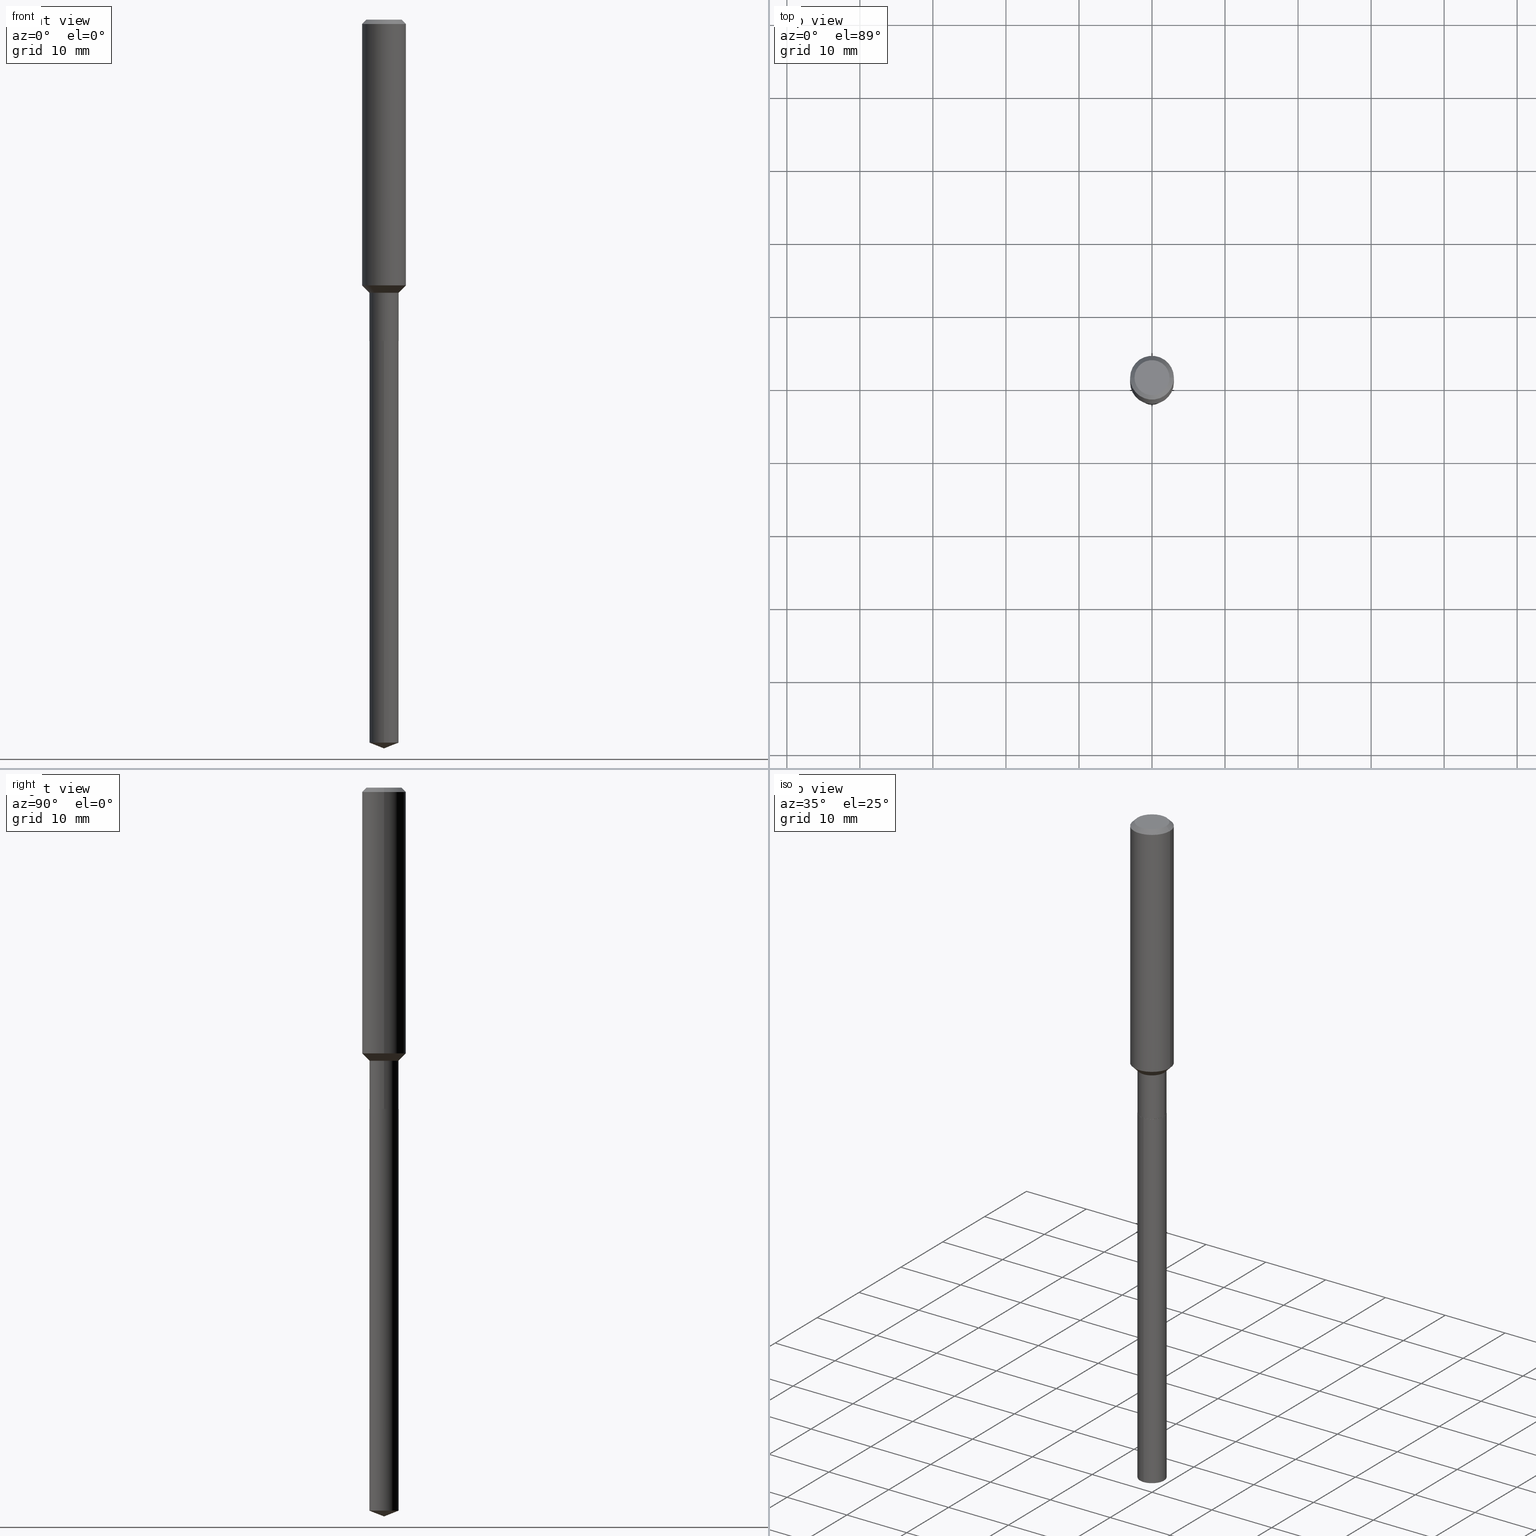
[diagram: canonical four-view strip — front | top / right | iso, engineering-drawing reading convention]
A machine part, canonical four-view strip (front | top / right | iso — engineering-drawing reading convention). The complete STEP part file that produces these views, byte-faithful:
ISO-10303-21;
HEADER;
FILE_DESCRIPTION (( 'STEP AP203' ),
    '1' );
FILE_NAME ('66719.STEP',
    '2024-04-25T04:27:47',
    ( '' ),
    ( '' ),
    'SwSTEP 2.0',
    'SolidWorks 2023',
    '' );
FILE_SCHEMA (( 'CONFIG_CONTROL_DESIGN' ));
ENDSEC;

DATA;
#1 = ORIENTED_EDGE ( 'NONE', *, *, #463, .F. ) ;
#2 = CARTESIAN_POINT ( 'NONE',  ( 4.234818331670801367E-29, -6.046198234474675274E-15, -1.731700000000000017 ) ) ;
#3 = EDGE_CURVE ( 'NONE', #52, #313, #203, .T. ) ;
#4 = ORIENTED_EDGE ( 'NONE', *, *, #3, .F. ) ;
#5 = LOCAL_TIME ( 0, 27, 47.00000000000000000, #368 ) ;
#6 = EDGE_CURVE ( 'NONE', #18, #170, #411, .T. ) ;
#7 = CARTESIAN_POINT ( 'NONE',  ( 0.07825000000000000011, -6.594360804673047116E-15, -1.732199999999999962 ) ) ;
#8 = CC_DESIGN_PERSON_AND_ORGANIZATION_ASSIGNMENT ( #445, #249, ( #283 ) ) ;
#9 = ORIENTED_EDGE ( 'NONE', *, *, #250, .T. ) ;
#10 = VERTEX_POINT ( 'NONE', #443 ) ;
#11 = SHAPE_DEFINITION_REPRESENTATION ( #251, #188 ) ;
#12 = ADVANCED_FACE ( 'NONE', ( #147 ), #173, .T. ) ;
#13 = ORIENTED_EDGE ( 'NONE', *, *, #105, .F. ) ;
#14 = APPROVAL_STATUS ( 'not_yet_approved' ) ;
#15 = AXIS2_PLACEMENT_3D ( 'NONE', #83, #186, #20 ) ;
#16 = AXIS2_PLACEMENT_3D ( 'NONE', #2, #129, #338 ) ;
#17 = DIRECTION ( 'NONE',  ( 1.000000000000000000, -6.982962677686265922E-15, 0.000000000000000000 ) ) ;
#18 = VERTEX_POINT ( 'NONE', #194 ) ;
#19 = CARTESIAN_POINT ( 'NONE',  ( -0.07874999999999995892, -5.033975274482582847E-15, -1.472400000000000153 ) ) ;
#20 = DIRECTION ( 'NONE',  ( -6.982962677686265922E-15, -1.000000000000000000, 3.498627837350102041E-15 ) ) ;
#21 = CALENDAR_DATE ( 2024, 25, 4 ) ;
#22 = CARTESIAN_POINT ( 'NONE',  ( 4.716267017698007905E-46, -6.733579360998555036E-32, -1.928573779297252010E-17 ) ) ;
#23 = EDGE_CURVE ( 'NONE', #260, #319, #287, .T. ) ;
#24 = VECTOR ( 'NONE', #190, 39.37007874015748143 ) ;
#25 = AXIS2_PLACEMENT_3D ( 'NONE', #475, #143, #436 ) ;
#26 = CARTESIAN_POINT ( 'NONE',  ( 4.236041066073893047E-29, -6.047943975144096777E-15, -1.732199999999999962 ) ) ;
#27 = ADVANCED_FACE ( 'NONE', ( #117 ), #417, .T. ) ;
#28 = DIRECTION ( 'NONE',  ( -6.982962677686264344E-15, -1.000000000000000000, 6.938026650575906587E-15 ) ) ;
#29 = CARTESIAN_POINT ( 'NONE',  ( -8.666863616417803331E-28, 1.237438933470214878E-13, 35.44107874015747939 ) ) ;
#30 = DATE_TIME_ROLE ( 'creation_date' ) ;
#31 = LINE ( 'NONE', #76, #198 ) ;
#32 = CONICAL_SURFACE ( 'NONE', #145, 0.07874999999999995892, 0.7853981633974516097 ) ;
#33 = DIRECTION ( 'NONE',  ( -1.000000000000000000, 6.982962677686265922E-15, -4.876176775795935793E-29 ) ) ;
#34 = AXIS2_PLACEMENT_3D ( 'NONE', #471, #54, #209 ) ;
#35 = LOCAL_TIME ( 0, 27, 47.00000000000000000, #142 ) ;
#36 = DIRECTION ( 'NONE',  ( -6.982962677686264344E-15, -1.000000000000000000, 3.469013325287953293E-15 ) ) ;
#37 = LINE ( 'NONE', #40, #100 ) ;
#38 = EDGE_LOOP ( 'NONE', ( #456, #175, #310, #376 ) ) ;
#39 = DIRECTION ( 'NONE',  ( -2.445430704826410489E-29, 3.491535902157436245E-15, 1.000000000000000000 ) ) ;
#40 = CARTESIAN_POINT ( 'NONE',  ( -0.07825000000000000011, -5.491944284411818085E-15, -1.732199999999999962 ) ) ;
#41 = AXIS2_PLACEMENT_3D ( 'NONE', #124, #271, #17 ) ;
#42 = MANIFOLD_SOLID_BREP ( 'Body-Move/Copy2[2]', #197 ) ;
#43 = DIRECTION ( 'NONE',  ( -1.000000000000000000, 6.982962677686266711E-15, 0.000000000000000000 ) ) ;
#44 = EDGE_CURVE ( 'NONE', #430, #459, #149, .T. ) ;
#45 = CARTESIAN_POINT ( 'NONE',  ( 4.716267017698007905E-46, -6.733579360998555036E-32, -1.928573779297252010E-17 ) ) ;
#46 = CARTESIAN_POINT ( 'NONE',  ( -5.499083108676978935E-16, -0.07875000000001357303, -3.897979550045322483 ) ) ;
#47 = APPROVAL ( #434, 'UNSPECIFIED' ) ;
#48 = VECTOR ( 'NONE', #359, 39.37007874015748854 ) ;
#49 = ORIENTED_EDGE ( 'NONE', *, *, #44, .F. ) ;
#50 = AXIS2_PLACEMENT_3D ( 'NONE', #225, #398, #74 ) ;
#51 = APPROVAL_PERSON_ORGANIZATION ( #183, #47, #400 ) ;
#52 = VERTEX_POINT ( 'NONE', #229 ) ;
#53 = APPROVAL_ROLE ( '' ) ;
#54 = DIRECTION ( 'NONE',  ( 0.000000000000000000, 0.000000000000000000, 1.000000000000000000 ) ) ;
#55 = EDGE_CURVE ( 'NONE', #128, #56, #140, .T. ) ;
#56 = VERTEX_POINT ( 'NONE', #259 ) ;
#57 = APPROVAL ( #481, 'UNSPECIFIED' ) ;
#58 =( NAMED_UNIT ( * ) SI_UNIT ( $, .STERADIAN. ) SOLID_ANGLE_UNIT ( ) );
#59 = ORIENTED_EDGE ( 'NONE', *, *, #234, .T. ) ;
#60 = FACE_OUTER_BOUND ( 'NONE', #243, .T. ) ;
#61 = ADVANCED_FACE ( 'NONE', ( #228 ), #32, .T. ) ;
#62 = DESIGN_CONTEXT ( 'detailed design', #451, 'design' ) ;
#63 = CALENDAR_DATE ( 2024, 25, 4 ) ;
#64 = VECTOR ( 'NONE', #154, 39.37007874015748854 ) ;
#65 = CIRCLE ( 'NONE', #50, 0.1181000000000001632 ) ;
#66 = CARTESIAN_POINT ( 'NONE',  ( 0.1181000000000001632, -5.828155224863919617E-15, -1.433050000000000157 ) ) ;
#67 = CIRCLE ( 'NONE', #478, 0.1180999999999999966 ) ;
#68 = CC_DESIGN_APPROVAL ( #276, ( #438 ) ) ;
#69 = CYLINDRICAL_SURFACE ( 'NONE', #238, 0.07874999999999997280 ) ;
#70 = EDGE_CURVE ( 'NONE', #355, #371, #237, .T. ) ;
#71 = DIRECTION ( 'NONE',  ( 1.000000000000000000, -6.982962677686266711E-15, 4.876176775795936353E-29 ) ) ;
#72 = DATE_AND_TIME ( #441, #127 ) ;
#73 = CARTESIAN_POINT ( 'NONE',  ( 5.776197320209328408E-31, -8.246878922347560526E-17, -0.02362000000000014435 ) ) ;
#74 = DIRECTION ( 'NONE',  ( 1.000000000000000000, -6.982962677686270655E-15, 0.000000000000000000 ) ) ;
#75 = APPLICATION_PROTOCOL_DEFINITION ( 'international standard', 'config_control_design', 1994, #451 ) ;
#76 = CARTESIAN_POINT ( 'NONE',  ( 9.608097239262967129E-29, -1.371824455957656728E-14, -3.929000000000000270 ) ) ;
#77 = PERSON ( 'UNSPECIFIED', 'UNSPECIFIED', 'UNSPECIFIED', ('UNSPECIFIED'), ('UNSPECIFIED'), ('UNSPECIFIED') ) ;
#78 = DIRECTION ( 'NONE',  ( -2.445468806185136597E-29, 3.491481338843145583E-15, 1.000000000000000000 ) ) ;
#79 = AXIS2_PLACEMENT_3D ( 'NONE', #377, #185, #28 ) ;
#80 = CC_DESIGN_APPROVAL ( #47, ( #248 ) ) ;
#81 = DIMENSIONAL_EXPONENTS ( 1.000000000000000000, 0.000000000000000000, 0.000000000000000000, 0.000000000000000000, 0.000000000000000000, 0.000000000000000000, 0.000000000000000000 ) ;
#82 = DIRECTION ( 'NONE',  ( 6.611014441532042923E-15, 0.9304175679820235745, 0.3665012267242994115 ) ) ;
#83 = CARTESIAN_POINT ( 'NONE',  ( -8.666863616417803331E-28, 1.237438933470214878E-13, 35.44107874015747939 ) ) ;
#84 = LINE ( 'NONE', #156, #362 ) ;
#85 = EDGE_LOOP ( 'NONE', ( #239, #444 ) ) ;
#86 = CARTESIAN_POINT ( 'NONE',  ( 4.236041066073893047E-29, -6.047943975144096777E-15, -1.732199999999999962 ) ) ;
#87 = CIRCLE ( 'NONE', #354, 0.09447999999999998066 ) ;
#88 = ORIENTED_EDGE ( 'NONE', *, *, #101, .F. ) ;
#89 = ADVANCED_FACE ( 'NONE', ( #179 ), #331, .F. ) ;
#90 = CARTESIAN_POINT ( 'NONE',  ( -0.1181000000000001632, -4.164316361696490002E-15, -1.433050000000000157 ) ) ;
#91 = DIRECTION ( 'NONE',  ( -2.445468806185136597E-29, 3.491481338843145583E-15, 1.000000000000000000 ) ) ;
#92 = EDGE_LOOP ( 'NONE', ( #9, #420, #123, #49 ) ) ;
#93 = EDGE_CURVE ( 'NONE', #10, #490, #37, .T. ) ;
#94 = AXIS2_PLACEMENT_3D ( 'NONE', #299, #303, #33 ) ;
#95 = ORIENTED_EDGE ( 'NONE', *, *, #279, .T. ) ;
#96 = DIRECTION ( 'NONE',  ( 1.000000000000000000, -6.982962677686267499E-15, 4.875432709231658792E-29 ) ) ;
#97 = ORIENTED_EDGE ( 'NONE', *, *, #466, .F. ) ;
#98 = PERSON_AND_ORGANIZATION_ROLE ( 'classification_officer' ) ;
#99 = DIRECTION ( 'NONE',  ( 1.000000000000000000, -6.982962677686261977E-15, 0.000000000000000000 ) ) ;
#100 = VECTOR ( 'NONE', #323, 39.37007874015748143 ) ;
#101 = EDGE_CURVE ( 'NONE', #207, #371, #339, .T. ) ;
#102 = CONICAL_SURFACE ( 'NONE', #174, 0.07825000000000000011, 0.7853981633975507526 ) ;
#103 = ADVANCED_FACE ( 'NONE', ( #470 ), #388, .T. ) ;
#104 = CARTESIAN_POINT ( 'NONE',  ( -0.1180999999999999966, 7.422191030112725094E-16, -0.02362000000000014435 ) ) ;
#105 = EDGE_CURVE ( 'NONE', #56, #355, #255, .T. ) ;
#106 = DIRECTION ( 'NONE',  ( 1.000000000000000000, -6.982962677686267499E-15, 0.000000000000000000 ) ) ;
#107 = CLOSED_SHELL ( 'NONE', ( #252, #103, #12, #457, #363 ) ) ;
#108 = AXIS2_PLACEMENT_3D ( 'NONE', #455, #383, #43 ) ;
#109 = CARTESIAN_POINT ( 'NONE',  ( 3.600708270226995482E-29, -5.140857123312647235E-15, -1.472400000000000153 ) ) ;
#110 = LOCAL_TIME ( 0, 27, 47.00000000000000000, #244 ) ;
#111 = DIRECTION ( 'NONE',  ( 1.000000000000000000, -6.982962677686270655E-15, 0.000000000000000000 ) ) ;
#112 = CC_DESIGN_DATE_AND_TIME_ASSIGNMENT ( #72, #30, ( #283 ) ) ;
#113 = COORDINATED_UNIVERSAL_TIME_OFFSET ( 5, 0, .BEHIND. ) ;
#114 = FACE_OUTER_BOUND ( 'NONE', #92, .T. ) ;
#115 = DIRECTION ( 'NONE',  ( -2.438088387897960049E-29, 3.491481338843145188E-15, 1.000000000000000000 ) ) ;
#116 = CARTESIAN_POINT ( 'NONE',  ( 4.236041066073893047E-29, -6.047943975144096777E-15, -1.732199999999999962 ) ) ;
#117 = FACE_OUTER_BOUND ( 'NONE', #38, .T. ) ;
#118 = CARTESIAN_POINT ( 'NONE',  ( 4.234818331670801367E-29, -6.046198234474675274E-15, -1.731700000000000017 ) ) ;
#119 = ORIENTED_EDGE ( 'NONE', *, *, #410, .T. ) ;
#120 = CARTESIAN_POINT ( 'NONE',  ( -0.1181000000000000799, 8.391509709326788873E-16, -5.809262341591047988E-30 ) ) ;
#121 = CARTESIAN_POINT ( 'NONE',  ( 3.600708270226995482E-29, -5.140857123312647235E-15, -1.472400000000000153 ) ) ;
#122 = ADVANCED_FACE ( 'NONE', ( #480 ), #157, .F. ) ;
#123 = ORIENTED_EDGE ( 'NONE', *, *, #473, .F. ) ;
#124 = CARTESIAN_POINT ( 'NONE',  ( 3.600708270226995482E-29, -5.140857123312647235E-15, -1.472400000000000153 ) ) ;
#125 = VECTOR ( 'NONE', #370, 39.37007874015748143 ) ;
#126 = CONICAL_SURFACE ( 'NONE', #108, 0.1180999999999999966, 0.7853981633974459475 ) ;
#127 = LOCAL_TIME ( 0, 27, 47.00000000000000000, #113 ) ;
#128 = VERTEX_POINT ( 'NONE', #405 ) ;
#129 = DIRECTION ( 'NONE',  ( -2.445468806185136597E-29, 3.491481338843145583E-15, 1.000000000000000000 ) ) ;
#130 = EDGE_LOOP ( 'NONE', ( #464, #282, #428, #97 ) ) ;
#131 = CYLINDRICAL_SURFACE ( 'NONE', #221, 0.07875000000000000056 ) ;
#132 = ORIENTED_EDGE ( 'NONE', *, *, #346, .T. ) ;
#133 = DATE_TIME_ROLE ( 'classification_date' ) ;
#134 = EDGE_CURVE ( 'NONE', #490, #128, #325, .T. ) ;
#135 = AXIS2_PLACEMENT_3D ( 'NONE', #116, #366, #106 ) ;
#136 = DIRECTION ( 'NONE',  ( -2.445468806185136597E-29, 3.491481338843145583E-15, 1.000000000000000000 ) ) ;
#137 = COORDINATED_UNIVERSAL_TIME_OFFSET ( 5, 0, .BEHIND. ) ;
#138 = ORIENTED_EDGE ( 'NONE', *, *, #55, .T. ) ;
#139 = ORIENTED_EDGE ( 'NONE', *, *, #485, .T. ) ;
#140 = LINE ( 'NONE', #447, #395 ) ;
#141 = CIRCLE ( 'NONE', #292, 0.07874999999999995892 ) ;
#142 = COORDINATED_UNIVERSAL_TIME_OFFSET ( 5, 0, .BEHIND. ) ;
#143 = DIRECTION ( 'NONE',  ( -2.445468806185136597E-29, 3.491481338843145583E-15, 1.000000000000000000 ) ) ;
#144 = CALENDAR_DATE ( 2024, 25, 4 ) ;
#145 = AXIS2_PLACEMENT_3D ( 'NONE', #409, #78, #483 ) ;
#146 = DIRECTION ( 'NONE',  ( -6.982962677686264344E-15, -1.000000000000000000, 6.938026650575906587E-15 ) ) ;
#147 = FACE_OUTER_BOUND ( 'NONE', #192, .T. ) ;
#148 = CARTESIAN_POINT ( 'NONE',  ( 4.236041066073893047E-29, -6.047943975144096777E-15, -1.732199999999999962 ) ) ;
#149 = LINE ( 'NONE', #296, #125 ) ;
#150 = ADVANCED_FACE ( 'NONE', ( #407 ), #217, .T. ) ;
#151 = EDGE_LOOP ( 'NONE', ( #278, #235, #453, #13 ) ) ;
#152 = DIRECTION ( 'NONE',  ( 1.000000000000000000, -6.982962677686266711E-15, 0.000000000000000000 ) ) ;
#153 = EDGE_CURVE ( 'NONE', #371, #355, #65, .T. ) ;
#154 = DIRECTION ( 'NONE',  ( -0.7071067811865497932, 7.493145998870362049E-15, 0.7071067811865451302 ) ) ;
#155 = ADVANCED_FACE ( 'NONE', ( #60 ), #270, .T. ) ;
#156 = CARTESIAN_POINT ( 'NONE',  ( 0.1180999999999999966, -8.926936027602933910E-16, -0.02362000000000014435 ) ) ;
#157 = PLANE ( 'NONE',  #94 ) ;
#158 = CONICAL_SURFACE ( 'NONE', #427, 0.07874999999999995892, 0.7853981633974516097 ) ;
#159 = APPLICATION_CONTEXT ( 'configuration controlled 3d designs of mechanical parts and assemblies' ) ;
#160 = DIRECTION ( 'NONE',  ( 1.000000000000000000, -6.982962677686267499E-15, 4.876176775795935793E-29 ) ) ;
#161 = ORIENTED_EDGE ( 'NONE', *, *, #279, .F. ) ;
#162 = UNCERTAINTY_MEASURE_WITH_UNIT (LENGTH_MEASURE( 1.000000000000000082E-05 ), #321, 'distance_accuracy_value', 'NONE');
#163 = ORIENTED_EDGE ( 'NONE', *, *, #105, .T. ) ;
#164 = LINE ( 'NONE', #120, #437 ) ;
#165 = VECTOR ( 'NONE', #458, 39.37007874015748143 ) ;
#166 = ORIENTED_EDGE ( 'NONE', *, *, #250, .F. ) ;
#167 = VERTEX_POINT ( 'NONE', #416 ) ;
#168 = PERSON_AND_ORGANIZATION ( #77, #246 ) ;
#169 =( LENGTH_UNIT ( ) NAMED_UNIT ( * ) SI_UNIT ( $, .METRE. ) );
#170 = VERTEX_POINT ( 'NONE', #452 ) ;
#171 = DATE_AND_TIME ( #21, #454 ) ;
#172 = DIRECTION ( 'NONE',  ( -6.982962677686264344E-15, -1.000000000000000000, 3.469013325287953293E-15 ) ) ;
#173 = CONICAL_SURFACE ( 'NONE', #15, 99.94676754583717582, 1.195550537616109965 ) ;
#174 = AXIS2_PLACEMENT_3D ( 'NONE', #216, #182, #356 ) ;
#175 = ORIENTED_EDGE ( 'NONE', *, *, #93, .T. ) ;
#176 = EDGE_CURVE ( 'NONE', #56, #207, #326, .T. ) ;
#177 = ORIENTED_EDGE ( 'NONE', *, *, #473, .T. ) ;
#178 = LENGTH_MEASURE_WITH_UNIT ( LENGTH_MEASURE( 0.02539999999999999897 ), #169 );
#179 = FACE_OUTER_BOUND ( 'NONE', #85, .T. ) ;
#180 = SECURITY_CLASSIFICATION_LEVEL ( 'unclassified' ) ;
#181 = DIRECTION ( 'NONE',  ( 1.000000000000000000, -6.982962677686267499E-15, 4.875432709231658792E-29 ) ) ;
#182 = DIRECTION ( 'NONE',  ( -2.445468806185136597E-29, 3.491481338843145583E-15, 1.000000000000000000 ) ) ;
#183 = PERSON_AND_ORGANIZATION ( #77, #246 ) ;
#184 = AXIS2_PLACEMENT_3D ( 'NONE', #189, #333, #293 ) ;
#185 = DIRECTION ( 'NONE',  ( -2.445430704826410489E-29, 3.491535902157436245E-15, 1.000000000000000000 ) ) ;
#186 = DIRECTION ( 'NONE',  ( -2.445430704826410489E-29, 3.491535902157436245E-15, 1.000000000000000000 ) ) ;
#187 = DIRECTION ( 'NONE',  ( -6.982962677686265922E-15, -1.000000000000000000, 3.498627837350102041E-15 ) ) ;
#188 = ADVANCED_BREP_SHAPE_REPRESENTATION ( '66719', ( #358, #42, #34 ), #397 ) ;
#189 = CARTESIAN_POINT ( 'NONE',  ( 0.000000000000000000, 0.000000000000000000, 0.000000000000000000 ) ) ;
#190 = DIRECTION ( 'NONE',  ( -2.445430704826410489E-29, 3.491535902157436640E-15, 1.000000000000000000 ) ) ;
#191 = PRODUCT_RELATED_PRODUCT_CATEGORY ( 'detail', '', ( #343 ) ) ;
#192 = EDGE_LOOP ( 'NONE', ( #353, #284, #344 ) ) ;
#193 = DIRECTION ( 'NONE',  ( -6.982962677686264344E-15, -1.000000000000000000, 3.469013325287953293E-15 ) ) ;
#194 = CARTESIAN_POINT ( 'NONE',  ( 0.1180999999999999966, -9.071566814582237199E-16, -0.02362000000000014435 ) ) ;
#195 = ADVANCED_FACE ( 'NONE', ( #396 ), #102, .T. ) ;
#196 = DIRECTION ( 'NONE',  ( 0.7071067811865459074, -7.319954787623251312E-15, -0.7071067811865492381 ) ) ;
#197 = CLOSED_SHELL ( 'NONE', ( #27, #375, #222, #61, #360, #357, #390, #150, #155, #122, #89, #195 ) ) ;
#198 = VECTOR ( 'NONE', #479, 39.37007874015748854 ) ;
#199 = EDGE_LOOP ( 'NONE', ( #265, #139 ) ) ;
#200 = CARTESIAN_POINT ( 'NONE',  ( 0.07825000000000000011, -6.594360804673047116E-15, -1.732199999999999962 ) ) ;
#201 = CARTESIAN_POINT ( 'NONE',  ( 5.776197320209328408E-31, -8.246878922347560526E-17, -0.02362000000000014435 ) ) ;
#202 = CARTESIAN_POINT ( 'NONE',  ( -0.07874999999999997280, 5.595524044110787031E-16, -3.873661383575737091E-30 ) ) ;
#203 = CIRCLE ( 'NONE', #212, 0.09447999999999998066 ) ;
#204 = VECTOR ( 'NONE', #291, 39.37007874015748143 ) ;
#205 = EDGE_LOOP ( 'NONE', ( #352, #305, #138, #232 ) ) ;
#206 = CC_DESIGN_PERSON_AND_ORGANIZATION_ASSIGNMENT ( #465, #240, ( #248 ) ) ;
#207 = VERTEX_POINT ( 'NONE', #19 ) ;
#208 = PERSON_AND_ORGANIZATION ( #77, #246 ) ;
#209 = DIRECTION ( 'NONE',  ( 1.000000000000000000, 0.000000000000000000, 0.000000000000000000 ) ) ;
#210 = DIRECTION ( 'NONE',  ( 1.000000000000000000, -6.982962677686266711E-15, 0.000000000000000000 ) ) ;
#211 = PERSON_AND_ORGANIZATION_ROLE ( 'design_owner' ) ;
#212 = AXIS2_PLACEMENT_3D ( 'NONE', #45, #136, #96 ) ;
#213 = VECTOR ( 'NONE', #82, 39.37007874015748143 ) ;
#214 = ORIENTED_EDGE ( 'NONE', *, *, #256, .F. ) ;
#215 = CC_DESIGN_PERSON_AND_ORGANIZATION_ASSIGNMENT ( #242, #211, ( #343 ) ) ;
#216 = CARTESIAN_POINT ( 'NONE',  ( 4.236041066073893047E-29, -6.047943975144096777E-15, -1.732199999999999962 ) ) ;
#217 = CYLINDRICAL_SURFACE ( 'NONE', #340, 0.1181000000000000799 ) ;
#218 = APPROVAL_DATE_TIME ( #171, #276 ) ;
#219 = FACE_OUTER_BOUND ( 'NONE', #392, .T. ) ;
#220 = DATE_AND_TIME ( #63, #35 ) ;
#221 = AXIS2_PLACEMENT_3D ( 'NONE', #266, #39, #193 ) ;
#222 = ADVANCED_FACE ( 'NONE', ( #219 ), #369, .T. ) ;
#223 = DIRECTION ( 'NONE',  ( 1.000000000000000000, -6.982962677686267499E-15, 0.000000000000000000 ) ) ;
#224 = CARTESIAN_POINT ( 'NONE',  ( 0.000000000000000000, 0.000000000000000000, 0.000000000000000000 ) ) ;
#225 = CARTESIAN_POINT ( 'NONE',  ( 3.504479072703610279E-29, -5.003467332629170566E-15, -1.433050000000000157 ) ) ;
#226 = DIRECTION ( 'NONE',  ( -2.445430704826410489E-29, 3.491535902157436245E-15, 1.000000000000000000 ) ) ;
#227 = APPROVAL_PERSON_ORGANIZATION ( #372, #57, #439 ) ;
#228 = FACE_OUTER_BOUND ( 'NONE', #151, .T. ) ;
#229 = CARTESIAN_POINT ( 'NONE',  ( -0.09447999999999998066, 7.009847083995354710E-16, -1.928573779297727792E-17 ) ) ;
#230 = ORIENTED_EDGE ( 'NONE', *, *, #153, .T. ) ;
#231 = VECTOR ( 'NONE', #349, 39.37007874015748143 ) ;
#232 = ORIENTED_EDGE ( 'NONE', *, *, #263, .F. ) ;
#233 = LINE ( 'NONE', #200, #165 ) ;
#234 = EDGE_CURVE ( 'NONE', #10, #448, #286, .T. ) ;
#235 = ORIENTED_EDGE ( 'NONE', *, *, #101, .T. ) ;
#236 = DIRECTION ( 'NONE',  ( 6.982962677686265922E-15, 1.000000000000000000, -3.491535902157436640E-15 ) ) ;
#237 = CIRCLE ( 'NONE', #245, 0.1181000000000001632 ) ;
#238 = AXIS2_PLACEMENT_3D ( 'NONE', #224, #476, #160 ) ;
#239 = ORIENTED_EDGE ( 'NONE', *, *, #304, .F. ) ;
#240 = PERSON_AND_ORGANIZATION_ROLE ( 'design_supplier' ) ;
#241 = DIRECTION ( 'NONE',  ( -2.445468806185136597E-29, 3.491481338843145583E-15, 1.000000000000000000 ) ) ;
#242 = PERSON_AND_ORGANIZATION ( #77, #246 ) ;
#243 = EDGE_LOOP ( 'NONE', ( #1, #4, #394, #95 ) ) ;
#244 = COORDINATED_UNIVERSAL_TIME_OFFSET ( 5, 0, .BEHIND. ) ;
#245 = AXIS2_PLACEMENT_3D ( 'NONE', #264, #294, #111 ) ;
#246 = ORGANIZATION ( 'UNSPECIFIED', 'UNSPECIFIED', '' ) ;
#247 = CARTESIAN_POINT ( 'NONE',  ( 0.000000000000000000, 0.000000000000000000, 0.000000000000000000 ) ) ;
#248 = PRODUCT_DEFINITION_FORMATION_WITH_SPECIFIED_SOURCE ( 'ANY', '', #343, .NOT_KNOWN. ) ;
#249 = PERSON_AND_ORGANIZATION_ROLE ( 'creator' ) ;
#250 = EDGE_CURVE ( 'NONE', #430, #260, #402, .T. ) ;
#251 = PRODUCT_DEFINITION_SHAPE ( 'NONE', 'NONE',  #283 ) ;
#252 = ADVANCED_FACE ( 'NONE', ( #114 ), #474, .T. ) ;
#253 = DIRECTION ( 'NONE',  ( -2.445468806185136597E-29, 3.491481338843145583E-15, 1.000000000000000000 ) ) ;
#254 = CARTESIAN_POINT ( 'NONE',  ( 5.595524044111739581E-16, 0.07874999999998638645, -3.897979550045323371 ) ) ;
#255 = LINE ( 'NONE', #334, #48 ) ;
#256 = EDGE_CURVE ( 'NONE', #167, #430, #31, .T. ) ;
#257 = DIRECTION ( 'NONE',  ( -2.445468806185136597E-29, 3.491481338843145583E-15, 1.000000000000000000 ) ) ;
#258 = CARTESIAN_POINT ( 'NONE',  ( 0.09447999999999998066, -7.704367267948738690E-16, -1.928573779296752193E-17 ) ) ;
#259 = CARTESIAN_POINT ( 'NONE',  ( 0.07874999999999995892, -5.690765434180440581E-15, -1.472400000000000153 ) ) ;
#260 = VERTEX_POINT ( 'NONE', #254 ) ;
#261 = AXIS2_PLACEMENT_3D ( 'NONE', #482, #298, #290 ) ;
#262 = DIRECTION ( 'NONE',  ( -2.445468806185136597E-29, 3.491481338843145583E-15, 1.000000000000000000 ) ) ;
#263 = EDGE_CURVE ( 'NONE', #207, #56, #141, .T. ) ;
#264 = CARTESIAN_POINT ( 'NONE',  ( 3.504479072703610279E-29, -5.003467332629170566E-15, -1.433050000000000157 ) ) ;
#265 = ORIENTED_EDGE ( 'NONE', *, *, #3, .T. ) ;
#266 = CARTESIAN_POINT ( 'NONE',  ( 4.236041066073893047E-29, -6.047943975144096777E-15, -1.732199999999999962 ) ) ;
#267 = CC_DESIGN_PERSON_AND_ORGANIZATION_ASSIGNMENT ( #208, #98, ( #438 ) ) ;
#268 = ORIENTED_EDGE ( 'NONE', *, *, #23, .F. ) ;
#269 = ORIENTED_EDGE ( 'NONE', *, *, #70, .T. ) ;
#270 = CONICAL_SURFACE ( 'NONE', #403, 0.1180999999999999966, 0.7853981633974459475 ) ;
#271 = DIRECTION ( 'NONE',  ( -2.445468806185136597E-29, 3.491481338843145583E-15, 1.000000000000000000 ) ) ;
#272 = EDGE_LOOP ( 'NONE', ( #268, #132, #426, #320 ) ) ;
#273 = DIRECTION ( 'NONE',  ( -2.445468806185136877E-29, 3.491481338843145188E-15, 1.000000000000000000 ) ) ;
#274 = ORIENTED_EDGE ( 'NONE', *, *, #176, .F. ) ;
#275 = CALENDAR_DATE ( 2024, 25, 4 ) ;
#276 = APPROVAL ( #14, 'UNSPECIFIED' ) ;
#277 = FACE_OUTER_BOUND ( 'NONE', #384, .T. ) ;
#278 = ORIENTED_EDGE ( 'NONE', *, *, #176, .T. ) ;
#279 = EDGE_CURVE ( 'NONE', #170, #18, #67, .T. ) ;
#280 = AXIS2_PLACEMENT_3D ( 'NONE', #118, #257, #99 ) ;
#281 = CIRCLE ( 'NONE', #341, 0.07875000000000000056 ) ;
#282 = ORIENTED_EDGE ( 'NONE', *, *, #463, .T. ) ;
#283 = PRODUCT_DEFINITION ( 'UNKNOWN', '', #248, #62 ) ;
#284 = ORIENTED_EDGE ( 'NONE', *, *, #256, .T. ) ;
#285 = EDGE_LOOP ( 'NONE', ( #88, #380, #163, #385 ) ) ;
#286 = CIRCLE ( 'NONE', #135, 0.07825000000000000011 ) ;
#287 = LINE ( 'NONE', #433, #24 ) ;
#288 = EDGE_CURVE ( 'NONE', #355, #18, #295, .T. ) ;
#289 = APPROVAL_DATE_TIME ( #399, #57 ) ;
#290 = DIRECTION ( 'NONE',  ( -6.982962677686264344E-15, -1.000000000000000000, 3.469013325287953293E-15 ) ) ;
#291 = DIRECTION ( 'NONE',  ( -2.445468806185136877E-29, 3.491481338843145188E-15, 1.000000000000000000 ) ) ;
#292 = AXIS2_PLACEMENT_3D ( 'NONE', #109, #262, #408 ) ;
#293 = DIRECTION ( 'NONE',  ( 1.000000000000000000, -6.982962677686266711E-15, 4.876176775795936353E-29 ) ) ;
#294 = DIRECTION ( 'NONE',  ( -2.445468806185136597E-29, 3.491481338843145583E-15, 1.000000000000000000 ) ) ;
#295 = LINE ( 'NONE', #373, #204 ) ;
#296 = CARTESIAN_POINT ( 'NONE',  ( -5.499083108677510430E-16, -0.07875000000000603739, -1.732199999999999518 ) ) ;
#297 = ORIENTED_EDGE ( 'NONE', *, *, #315, .T. ) ;
#298 = DIRECTION ( 'NONE',  ( -2.445430704826410489E-29, 3.491535902157436245E-15, 1.000000000000000000 ) ) ;
#299 = CARTESIAN_POINT ( 'NONE',  ( 2.358133508849003952E-46, -3.366789680499277518E-32, -9.642868896486260050E-18 ) ) ;
#300 = ORIENTED_EDGE ( 'NONE', *, *, #288, .T. ) ;
#301 = AXIS2_PLACEMENT_3D ( 'NONE', #29, #226, #187 ) ;
#302 = AXIS2_PLACEMENT_3D ( 'NONE', #86, #419, #236 ) ;
#303 = DIRECTION ( 'NONE',  ( 2.438088387897960049E-29, -3.491481338843145188E-15, -1.000000000000000000 ) ) ;
#304 = EDGE_CURVE ( 'NONE', #448, #10, #350, .T. ) ;
#305 = ORIENTED_EDGE ( 'NONE', *, *, #134, .T. ) ;
#306 = FACE_OUTER_BOUND ( 'NONE', #130, .T. ) ;
#307 = AXIS2_PLACEMENT_3D ( 'NONE', #374, #115, #487 ) ;
#308 = AXIS2_PLACEMENT_3D ( 'NONE', #148, #335, #223 ) ;
#309 = CC_DESIGN_DATE_AND_TIME_ASSIGNMENT ( #431, #133, ( #438 ) ) ;
#310 = ORIENTED_EDGE ( 'NONE', *, *, #410, .F. ) ;
#311 = FACE_OUTER_BOUND ( 'NONE', #272, .T. ) ;
#312 = DIRECTION ( 'NONE',  ( 2.445468806185136597E-29, -3.491481338843145583E-15, -1.000000000000000000 ) ) ;
#313 = VERTEX_POINT ( 'NONE', #258 ) ;
#314 = PERSON_AND_ORGANIZATION_ROLE ( 'creator' ) ;
#315 = EDGE_CURVE ( 'NONE', #319, #459, #472, .T. ) ;
#316 = ORIENTED_EDGE ( 'NONE', *, *, #442, .T. ) ;
#317 = CARTESIAN_POINT ( 'NONE',  ( -0.07875000000000000056, -5.033975274482582847E-15, -1.731700000000000017 ) ) ;
#318 = AXIS2_PLACEMENT_3D ( 'NONE', #330, #406, #146 ) ;
#319 = VERTEX_POINT ( 'NONE', #446 ) ;
#320 = ORIENTED_EDGE ( 'NONE', *, *, #315, .F. ) ;
#321 =( CONVERSION_BASED_UNIT ( 'INCH', #178 ) LENGTH_UNIT ( ) NAMED_UNIT ( #81 ) );
#322 = EDGE_CURVE ( 'NONE', #167, #260, #413, .T. ) ;
#323 = DIRECTION ( 'NONE',  ( -0.7071067811866199593, 7.493145998870616062E-15, 0.7071067811864750752 ) ) ;
#324 = APPLICATION_PROTOCOL_DEFINITION ( 'international standard', 'config_control_design', 1994, #159 ) ;
#325 = CIRCLE ( 'NONE', #280, 0.07875000000000000056 ) ;
#326 = CIRCLE ( 'NONE', #41, 0.07874999999999995892 ) ;
#327 = APPROVAL_PERSON_ORGANIZATION ( #424, #276, #53 ) ;
#328 = DIRECTION ( 'NONE',  ( -2.445430704826410489E-29, 3.491535902157436245E-15, 1.000000000000000000 ) ) ;
#329 = CYLINDRICAL_SURFACE ( 'NONE', #25, 0.07874999999999997280 ) ;
#330 = CARTESIAN_POINT ( 'NONE',  ( 9.532304877639853407E-29, -1.360984103028571921E-14, -3.897979550045322927 ) ) ;
#331 = PLANE ( 'NONE',  #307 ) ;
#332 = AXIS2_PLACEMENT_3D ( 'NONE', #201, #241, #210 ) ;
#333 = DIRECTION ( 'NONE',  ( -2.445468806185136597E-29, 3.491481338843145583E-15, 1.000000000000000000 ) ) ;
#334 = CARTESIAN_POINT ( 'NONE',  ( 0.07874999999999995892, -5.690765434180440581E-15, -1.472400000000000153 ) ) ;
#335 = DIRECTION ( 'NONE',  ( -2.445468806185136597E-29, 3.491481338843145583E-15, 1.000000000000000000 ) ) ;
#336 = DIRECTION ( 'NONE',  ( -2.445468806185136877E-29, 3.491481338843145188E-15, 1.000000000000000000 ) ) ;
#337 = EDGE_LOOP ( 'NONE', ( #423, #59, #460, #450 ) ) ;
#338 = DIRECTION ( 'NONE',  ( 1.000000000000000000, -6.982962677686261977E-15, 0.000000000000000000 ) ) ;
#339 = LINE ( 'NONE', #440, #64 ) ;
#340 = AXIS2_PLACEMENT_3D ( 'NONE', #247, #477, #71 ) ;
#341 = AXIS2_PLACEMENT_3D ( 'NONE', #393, #387, #172 ) ;
#342 = CARTESIAN_POINT ( 'NONE',  ( 5.776197320209328408E-31, -8.246878922347560526E-17, -0.02362000000000014435 ) ) ;
#343 = PRODUCT ( '66719', '66719', '', ( #429 ) ) ;
#344 = ORIENTED_EDGE ( 'NONE', *, *, #346, .F. ) ;
#345 = DIRECTION ( 'NONE',  ( 1.000000000000000000, -6.982962677686265922E-15, 0.000000000000000000 ) ) ;
#346 = EDGE_CURVE ( 'NONE', #260, #430, #462, .T. ) ;
#347 = FACE_OUTER_BOUND ( 'NONE', #285, .T. ) ;
#348 = EDGE_LOOP ( 'NONE', ( #484, #230, #300, #161 ) ) ;
#349 = DIRECTION ( 'NONE',  ( -2.445468806185136877E-29, 3.491481338843145188E-15, 1.000000000000000000 ) ) ;
#350 = CIRCLE ( 'NONE', #308, 0.07825000000000000011 ) ;
#351 = ORIENTED_EDGE ( 'NONE', *, *, #288, .F. ) ;
#352 = ORIENTED_EDGE ( 'NONE', *, *, #442, .F. ) ;
#353 = ORIENTED_EDGE ( 'NONE', *, *, #322, .F. ) ;
#354 = AXIS2_PLACEMENT_3D ( 'NONE', #22, #469, #181 ) ;
#355 = VERTEX_POINT ( 'NONE', #66 ) ;
#356 = DIRECTION ( 'NONE',  ( 1.000000000000000000, -6.982962677686267499E-15, 0.000000000000000000 ) ) ;
#357 = ADVANCED_FACE ( 'NONE', ( #365 ), #329, .T. ) ;
#358 = MANIFOLD_SOLID_BREP ( 'Body-Move/Copy2[1]', #107 ) ;
#359 = DIRECTION ( 'NONE',  ( 0.7071067811865497932, -2.468850131082280332E-15, 0.7071067811865451302 ) ) ;
#360 = ADVANCED_FACE ( 'NONE', ( #404 ), #69, .T. ) ;
#361 = LINE ( 'NONE', #104, #488 ) ;
#362 = VECTOR ( 'NONE', #196, 39.37007874015748143 ) ;
#363 = ADVANCED_FACE ( 'NONE', ( #277 ), #449, .F. ) ;
#364 = APPROVAL_DATE_TIME ( #220, #47 ) ;
#365 = FACE_OUTER_BOUND ( 'NONE', #205, .T. ) ;
#366 = DIRECTION ( 'NONE',  ( -2.445468806185136597E-29, 3.491481338843145583E-15, 1.000000000000000000 ) ) ;
#367 = DIRECTION ( 'NONE',  ( -2.445468806185136597E-29, 3.491481338843145583E-15, 1.000000000000000000 ) ) ;
#368 = COORDINATED_UNIVERSAL_TIME_OFFSET ( 5, 0, .BEHIND. ) ;
#369 = CYLINDRICAL_SURFACE ( 'NONE', #184, 0.1181000000000000799 ) ;
#370 = DIRECTION ( 'NONE',  ( -2.445430704826410489E-29, 3.491535902157436640E-15, 1.000000000000000000 ) ) ;
#371 = VERTEX_POINT ( 'NONE', #90 ) ;
#372 = PERSON_AND_ORGANIZATION ( #77, #246 ) ;
#373 = CARTESIAN_POINT ( 'NONE',  ( 0.1181000000000000799, -8.246878922347486570E-16, 5.758764772215004644E-30 ) ) ;
#374 = CARTESIAN_POINT ( 'NONE',  ( 4.236041066073893047E-29, -6.047943975144096777E-15, -1.732199999999999962 ) ) ;
#375 = ADVANCED_FACE ( 'NONE', ( #306 ), #126, .T. ) ;
#376 = ORIENTED_EDGE ( 'NONE', *, *, #401, .F. ) ;
#377 = CARTESIAN_POINT ( 'NONE',  ( 9.532304877639853407E-29, -1.360984103028571921E-14, -3.897979550045322927 ) ) ;
#378 = DIRECTION ( 'NONE',  ( 1.000000000000000000, -6.982962677686267499E-15, 0.000000000000000000 ) ) ;
#379 = EDGE_LOOP ( 'NONE', ( #214, #468, #166 ) ) ;
#380 = ORIENTED_EDGE ( 'NONE', *, *, #263, .T. ) ;
#381 = CIRCLE ( 'NONE', #16, 0.07875000000000000056 ) ;
#382 = CC_DESIGN_SECURITY_CLASSIFICATION ( #438, ( #248 ) ) ;
#383 = DIRECTION ( 'NONE',  ( 2.445468806185136597E-29, -3.491481338843145583E-15, -1.000000000000000000 ) ) ;
#384 = EDGE_LOOP ( 'NONE', ( #177, #297 ) ) ;
#385 = ORIENTED_EDGE ( 'NONE', *, *, #153, .F. ) ;
#386 = ORIENTED_EDGE ( 'NONE', *, *, #425, .T. ) ;
#387 = DIRECTION ( 'NONE',  ( -2.445430704826410489E-29, 3.491535902157436245E-15, 1.000000000000000000 ) ) ;
#388 = CONICAL_SURFACE ( 'NONE', #301, 99.94676754583717582, 1.195550537616109965 ) ;
#389 = EDGE_LOOP ( 'NONE', ( #119, #316, #274, #418 ) ) ;
#390 = ADVANCED_FACE ( 'NONE', ( #347 ), #158, .T. ) ;
#391 =( NAMED_UNIT ( * ) PLANE_ANGLE_UNIT ( ) SI_UNIT ( $, .RADIAN. ) );
#392 = EDGE_LOOP ( 'NONE', ( #269, #386, #432, #351 ) ) ;
#393 = CARTESIAN_POINT ( 'NONE',  ( 4.236041066073893047E-29, -6.047943975144096777E-15, -1.732199999999999962 ) ) ;
#394 = ORIENTED_EDGE ( 'NONE', *, *, #466, .T. ) ;
#395 = VECTOR ( 'NONE', #336, 39.37007874015748143 ) ;
#396 = FACE_OUTER_BOUND ( 'NONE', #337, .T. ) ;
#397 =( GEOMETRIC_REPRESENTATION_CONTEXT ( 3 ) GLOBAL_UNCERTAINTY_ASSIGNED_CONTEXT ( ( #162 ) ) GLOBAL_UNIT_ASSIGNED_CONTEXT ( ( #321, #391, #58 ) ) REPRESENTATION_CONTEXT ( 'NONE', 'WORKASPACE' ) );
#398 = DIRECTION ( 'NONE',  ( -2.445468806185136597E-29, 3.491481338843145583E-15, 1.000000000000000000 ) ) ;
#399 = DATE_AND_TIME ( #144, #5 ) ;
#400 = APPROVAL_ROLE ( '' ) ;
#401 = EDGE_CURVE ( 'NONE', #448, #128, #233, .T. ) ;
#402 = CIRCLE ( 'NONE', #318, 0.07875000000000000056 ) ;
#403 = AXIS2_PLACEMENT_3D ( 'NONE', #342, #312, #422 ) ;
#404 = FACE_OUTER_BOUND ( 'NONE', #389, .T. ) ;
#405 = CARTESIAN_POINT ( 'NONE',  ( 0.07875000000000000056, -6.596106545342468619E-15, -1.731700000000000017 ) ) ;
#406 = DIRECTION ( 'NONE',  ( -2.445430704826410489E-29, 3.491535902157436245E-15, 1.000000000000000000 ) ) ;
#407 = FACE_OUTER_BOUND ( 'NONE', #348, .T. ) ;
#408 = DIRECTION ( 'NONE',  ( 1.000000000000000000, -6.982962677686265922E-15, 0.000000000000000000 ) ) ;
#409 = CARTESIAN_POINT ( 'NONE',  ( 3.600708270226995482E-29, -5.140857123312647235E-15, -1.472400000000000153 ) ) ;
#410 = EDGE_CURVE ( 'NONE', #128, #490, #381, .T. ) ;
#411 = CIRCLE ( 'NONE', #332, 0.1180999999999999966 ) ;
#412 = AXIS2_PLACEMENT_3D ( 'NONE', #26, #328, #36 ) ;
#413 = LINE ( 'NONE', #435, #213 ) ;
#414 = CC_DESIGN_PERSON_AND_ORGANIZATION_ASSIGNMENT ( #168, #314, ( #248 ) ) ;
#415 = CARTESIAN_POINT ( 'NONE',  ( 4.236041066073893047E-29, -6.047943975144096777E-15, -1.732199999999999962 ) ) ;
#416 = CARTESIAN_POINT ( 'NONE',  ( 9.608097239262967129E-29, -1.371824455957656728E-14, -3.929000000000000270 ) ) ;
#417 = CONICAL_SURFACE ( 'NONE', #461, 0.07825000000000000011, 0.7853981633975507526 ) ;
#418 = ORIENTED_EDGE ( 'NONE', *, *, #55, .F. ) ;
#419 = DIRECTION ( 'NONE',  ( 2.445430704826409648E-29, -3.491535902157436640E-15, -1.000000000000000000 ) ) ;
#420 = ORIENTED_EDGE ( 'NONE', *, *, #23, .T. ) ;
#421 = LINE ( 'NONE', #202, #231 ) ;
#422 = DIRECTION ( 'NONE',  ( -1.000000000000000000, 6.982962677686266711E-15, 0.000000000000000000 ) ) ;
#423 = ORIENTED_EDGE ( 'NONE', *, *, #93, .F. ) ;
#424 = PERSON_AND_ORGANIZATION ( #77, #246 ) ;
#425 = EDGE_CURVE ( 'NONE', #371, #170, #164, .T. ) ;
#426 = ORIENTED_EDGE ( 'NONE', *, *, #44, .T. ) ;
#427 = AXIS2_PLACEMENT_3D ( 'NONE', #121, #91, #345 ) ;
#428 = ORIENTED_EDGE ( 'NONE', *, *, #6, .T. ) ;
#429 = MECHANICAL_CONTEXT ( 'NONE', #159, 'mechanical' ) ;
#430 = VERTEX_POINT ( 'NONE', #46 ) ;
#431 = DATE_AND_TIME ( #275, #110 ) ;
#432 = ORIENTED_EDGE ( 'NONE', *, *, #6, .F. ) ;
#433 = CARTESIAN_POINT ( 'NONE',  ( 5.595524044111211044E-16, 0.07874999999999394984, -1.732200000000000184 ) ) ;
#434 = APPROVAL_STATUS ( 'not_yet_approved' ) ;
#435 = CARTESIAN_POINT ( 'NONE',  ( 9.608230395079831745E-29, -1.371805553043053851E-14, -3.929000000000000270 ) ) ;
#436 = DIRECTION ( 'NONE',  ( 1.000000000000000000, -6.982962677686267499E-15, 4.876176775795935793E-29 ) ) ;
#437 = VECTOR ( 'NONE', #273, 39.37007874015748143 ) ;
#438 = SECURITY_CLASSIFICATION ( '', '', #180 ) ;
#439 = APPROVAL_ROLE ( '' ) ;
#440 = CARTESIAN_POINT ( 'NONE',  ( -0.07874999999999995892, -4.581304718901569223E-15, -1.472400000000000153 ) ) ;
#441 = CALENDAR_DATE ( 2024, 25, 4 ) ;
#442 = EDGE_CURVE ( 'NONE', #490, #207, #421, .T. ) ;
#443 = CARTESIAN_POINT ( 'NONE',  ( -0.07825000000000000011, -5.489295057237706884E-15, -1.732199999999999962 ) ) ;
#444 = ORIENTED_EDGE ( 'NONE', *, *, #234, .F. ) ;
#445 = PERSON_AND_ORGANIZATION ( #77, #246 ) ;
#446 = CARTESIAN_POINT ( 'NONE',  ( 5.595524044111744511E-16, 0.07874999999999394984, -1.732200000000000184 ) ) ;
#447 = CARTESIAN_POINT ( 'NONE',  ( 0.07874999999999997280, -5.499083108677933457E-16, 3.839989210939298316E-30 ) ) ;
#448 = VERTEX_POINT ( 'NONE', #7 ) ;
#449 = PLANE ( 'NONE',  #302 ) ;
#450 = ORIENTED_EDGE ( 'NONE', *, *, #134, .F. ) ;
#451 = APPLICATION_CONTEXT ( 'configuration controlled 3d designs of mechanical parts and assemblies' ) ;
#452 = CARTESIAN_POINT ( 'NONE',  ( -0.1180999999999999966, -1.703817089993643631E-15, -0.02362000000000014435 ) ) ;
#453 = ORIENTED_EDGE ( 'NONE', *, *, #70, .F. ) ;
#454 = LOCAL_TIME ( 0, 27, 47.00000000000000000, #137 ) ;
#455 = CARTESIAN_POINT ( 'NONE',  ( 5.776197320209328408E-31, -8.246878922347560526E-17, -0.02362000000000014435 ) ) ;
#456 = ORIENTED_EDGE ( 'NONE', *, *, #304, .T. ) ;
#457 = ADVANCED_FACE ( 'NONE', ( #311 ), #131, .T. ) ;
#458 = DIRECTION ( 'NONE',  ( 0.7071067811866199593, -2.468850131083015945E-15, 0.7071067811864750752 ) ) ;
#459 = VERTEX_POINT ( 'NONE', #486 ) ;
#460 = ORIENTED_EDGE ( 'NONE', *, *, #401, .T. ) ;
#461 = AXIS2_PLACEMENT_3D ( 'NONE', #415, #367, #378 ) ;
#462 = CIRCLE ( 'NONE', #79, 0.07875000000000000056 ) ;
#463 = EDGE_CURVE ( 'NONE', #313, #18, #84, .T. ) ;
#464 = ORIENTED_EDGE ( 'NONE', *, *, #485, .F. ) ;
#465 = PERSON_AND_ORGANIZATION ( #77, #246 ) ;
#466 = EDGE_CURVE ( 'NONE', #52, #170, #361, .T. ) ;
#467 = DIRECTION ( 'NONE',  ( -0.7071067811865459074, 2.468850131082239706E-15, -0.7071067811865492381 ) ) ;
#468 = ORIENTED_EDGE ( 'NONE', *, *, #322, .T. ) ;
#469 = DIRECTION ( 'NONE',  ( -2.445468806185136597E-29, 3.491481338843145583E-15, 1.000000000000000000 ) ) ;
#470 = FACE_OUTER_BOUND ( 'NONE', #379, .T. ) ;
#471 = CARTESIAN_POINT ( 'NONE',  ( 0.000000000000000000, 0.000000000000000000, 0.000000000000000000 ) ) ;
#472 = CIRCLE ( 'NONE', #261, 0.07875000000000000056 ) ;
#473 = EDGE_CURVE ( 'NONE', #459, #319, #281, .T. ) ;
#474 = CYLINDRICAL_SURFACE ( 'NONE', #412, 0.07875000000000000056 ) ;
#475 = CARTESIAN_POINT ( 'NONE',  ( 0.000000000000000000, 0.000000000000000000, 0.000000000000000000 ) ) ;
#476 = DIRECTION ( 'NONE',  ( -2.445468806185136597E-29, 3.491481338843145583E-15, 1.000000000000000000 ) ) ;
#477 = DIRECTION ( 'NONE',  ( -2.445468806185136597E-29, 3.491481338843145583E-15, 1.000000000000000000 ) ) ;
#478 = AXIS2_PLACEMENT_3D ( 'NONE', #73, #253, #152 ) ;
#479 = DIRECTION ( 'NONE',  ( -6.497071151882095381E-15, -0.9304175679820211320, 0.3665012267243059618 ) ) ;
#480 = FACE_OUTER_BOUND ( 'NONE', #199, .T. ) ;
#481 = APPROVAL_STATUS ( 'not_yet_approved' ) ;
#482 = CARTESIAN_POINT ( 'NONE',  ( 4.236041066073893047E-29, -6.047943975144096777E-15, -1.732199999999999962 ) ) ;
#483 = DIRECTION ( 'NONE',  ( 1.000000000000000000, -6.982962677686265922E-15, 0.000000000000000000 ) ) ;
#484 = ORIENTED_EDGE ( 'NONE', *, *, #425, .F. ) ;
#485 = EDGE_CURVE ( 'NONE', #313, #52, #87, .T. ) ;
#486 = CARTESIAN_POINT ( 'NONE',  ( -5.499083108677510430E-16, -0.07875000000000603739, -1.732199999999999518 ) ) ;
#487 = DIRECTION ( 'NONE',  ( 1.000000000000000000, -6.982962677686265922E-15, 4.876176775795935793E-29 ) ) ;
#488 = VECTOR ( 'NONE', #467, 39.37007874015748143 ) ;
#489 = CC_DESIGN_APPROVAL ( #57, ( #283 ) ) ;
#490 = VERTEX_POINT ( 'NONE', #317 ) ;
ENDSEC;
END-ISO-10303-21;
